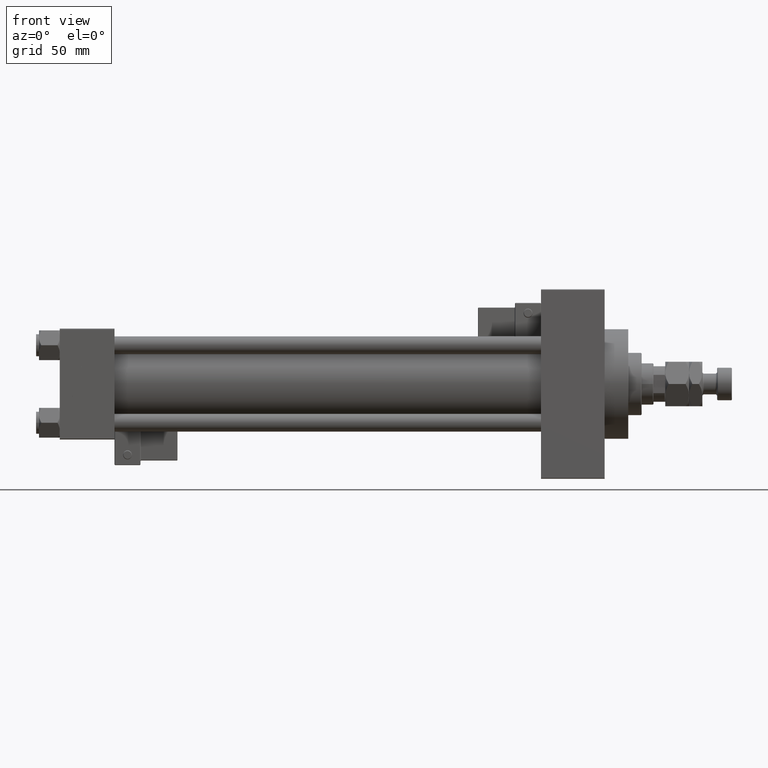
[diagram: clean part render]
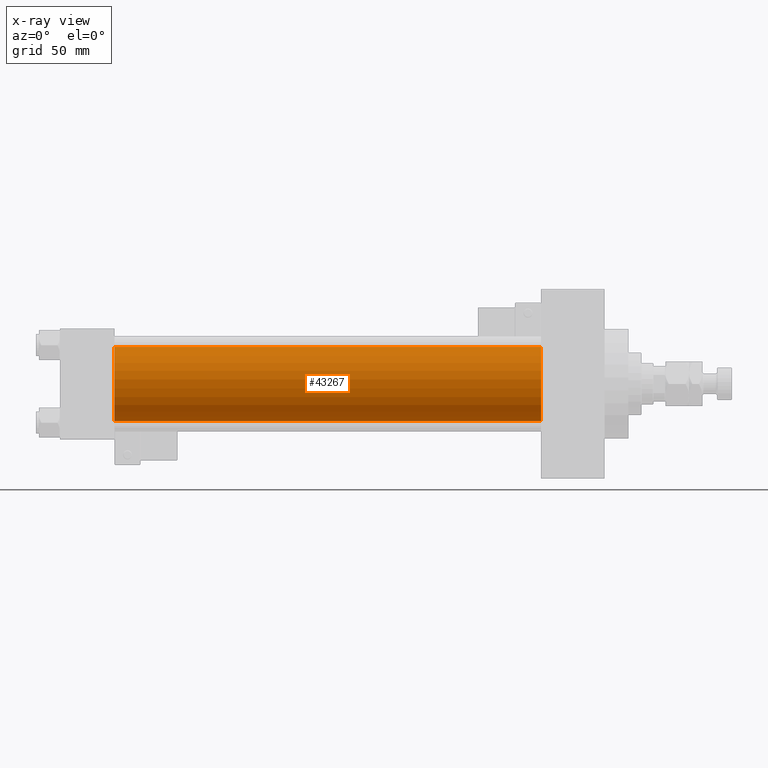
[diagram: x-ray — body ghosted, one internal face saturated and labeled with its STEP entity id]
A machine part, front view, then the same camera in x-ray: the body is ghosted and one INTERNAL B-rep face — a face not visible from any outside direction — is saturated and labeled: STEP entity #43267.
In plain terms, the highlighted cylindrical surface (partial cylindrical patch) has radius 25 mm, axis along (-1, -0, -0).
Its self-contained STEP definition (entity closure, byte-faithful):
#58 = DIRECTION ( 'NONE',  ( 0.000000000000000000, 0.000000000000000000, 1.000000000000000000 ) ) ;
#474 = VERTEX_POINT ( 'NONE', #39362 ) ;
#3507 = CIRCLE ( 'NONE', #52442, 25.00000000000000000 ) ;
#3554 = ORIENTED_EDGE ( 'NONE', *, *, #30930, .T. ) ;
#3865 = EDGE_CURVE ( 'NONE', #15788, #6632, #32907, .T. ) ;
#4094 = CYLINDRICAL_SURFACE ( 'NONE', #36559, 25.00000000000000000 ) ;
#6632 = VERTEX_POINT ( 'NONE', #29558 ) ;
#6951 = ORIENTED_EDGE ( 'NONE', *, *, #29236, .F. ) ;
#7353 = CARTESIAN_POINT ( 'NONE',  ( 37.00000000000000000, -2.602085213965210642E-15, 25.00000000000000000 ) ) ;
#7963 = CARTESIAN_POINT ( 'NONE',  ( 324.9999999999999432, 4.595317839031724996E-16, -25.00000000000000000 ) ) ;
#8286 = VECTOR ( 'NONE', #12885, 1000.000000000000000 ) ;
#12266 = LINE ( 'NONE', #7963, #26764 ) ;
#12885 = DIRECTION ( 'NONE',  ( -1.000000000000000000, -0.000000000000000000, -0.000000000000000000 ) ) ;
#13093 = EDGE_CURVE ( 'NONE', #15788, #29277, #41129, .T. ) ;
#15788 = VERTEX_POINT ( 'NONE', #49879 ) ;
#18115 = CARTESIAN_POINT ( 'NONE',  ( 324.9999999999999432, -2.602085213965210642E-15, 0.000000000000000000 ) ) ;
#19432 = EDGE_LOOP ( 'NONE', ( #22772, #3554, #6951, #52715 ) ) ;
#20512 = CARTESIAN_POINT ( 'NONE',  ( 324.9999999999999432, -2.602085213965210642E-15, 0.000000000000000000 ) ) ;
#20692 = CARTESIAN_POINT ( 'NONE',  ( 324.9999999999999432, -2.602085213965210642E-15, 25.00000000000000000 ) ) ;
#22772 = ORIENTED_EDGE ( 'NONE', *, *, #3865, .T. ) ;
#26764 = VECTOR ( 'NONE', #45049, 1000.000000000000000 ) ;
#29236 = EDGE_CURVE ( 'NONE', #29277, #474, #3507, .T. ) ;
#29277 = VERTEX_POINT ( 'NONE', #7353 ) ;
#29558 = CARTESIAN_POINT ( 'NONE',  ( 324.9999999999999432, 4.595317839031724996E-16, -25.00000000000000000 ) ) ;
#30930 = EDGE_CURVE ( 'NONE', #6632, #474, #12266, .T. ) ;
#32907 = CIRCLE ( 'NONE', #34623, 25.00000000000000000 ) ;
#34526 = CARTESIAN_POINT ( 'NONE',  ( 37.00000000000000000, -2.602085213965210642E-15, 0.000000000000000000 ) ) ;
#34623 = AXIS2_PLACEMENT_3D ( 'NONE', #18115, #42576, #50910 ) ;
#34789 = DIRECTION ( 'NONE',  ( 1.000000000000000000, 0.000000000000000000, 0.000000000000000000 ) ) ;
#36559 = AXIS2_PLACEMENT_3D ( 'NONE', #20512, #36908, #58 ) ;
#36908 = DIRECTION ( 'NONE',  ( -1.000000000000000000, -0.000000000000000000, -0.000000000000000000 ) ) ;
#39362 = CARTESIAN_POINT ( 'NONE',  ( 37.00000000000000000, 4.595317839031724996E-16, -25.00000000000000000 ) ) ;
#40939 = FACE_OUTER_BOUND ( 'NONE', #19432, .T. ) ;
#41129 = LINE ( 'NONE', #20692, #8286 ) ;
#42576 = DIRECTION ( 'NONE',  ( 1.000000000000000000, 0.000000000000000000, 0.000000000000000000 ) ) ;
#43267 = ADVANCED_FACE ( 'NONE', ( #40939 ), #4094, .F. ) ;
#45049 = DIRECTION ( 'NONE',  ( -1.000000000000000000, -0.000000000000000000, -0.000000000000000000 ) ) ;
#47136 = DIRECTION ( 'NONE',  ( 0.000000000000000000, 0.000000000000000000, -1.000000000000000000 ) ) ;
#49879 = CARTESIAN_POINT ( 'NONE',  ( 324.9999999999999432, -2.602085213965210642E-15, 25.00000000000000000 ) ) ;
#50910 = DIRECTION ( 'NONE',  ( 0.000000000000000000, 0.000000000000000000, -1.000000000000000000 ) ) ;
#52442 = AXIS2_PLACEMENT_3D ( 'NONE', #34526, #34789, #47136 ) ;
#52715 = ORIENTED_EDGE ( 'NONE', *, *, #13093, .F. ) ;